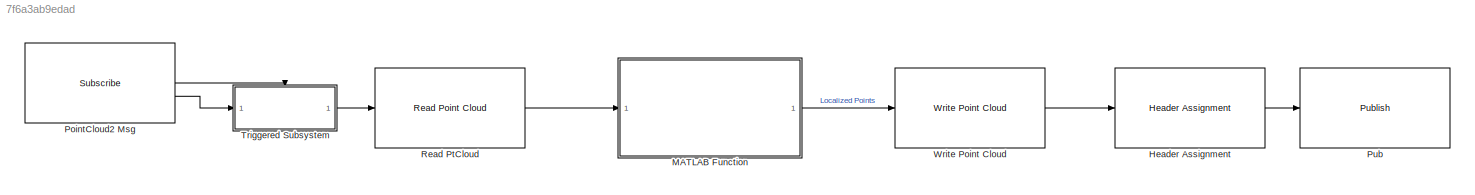
MODEL slx_7f6a3ab9edad
KIND model
CONFIG AbsTol = auto
CONFIG EnableMultiTasking = off
CONFIG FixedStep = auto
CONFIG MaxStep = auto
CONFIG MinStep = auto
CONFIG RelTol = 1e-3
CONFIG SampleTimeConstraint = Unconstrained
CONFIG SolverName = VariableStepAuto
CONFIG StartTime = 0.0
CONFIG StopTime = inf
WORKSPACE source: mxarray member
WORKSPACE SL_ROS_VariableLengthArrays_MaxSizes: object (value not decoded)
BLOCK [Reference] Header Assignment  REF=robotlib/Header Assignment
  LibrarySourceBlock = roslib/ROS/Header Assignment
  SourceBlock = robotlib/Header Assignment
  SourceType = ROS Header
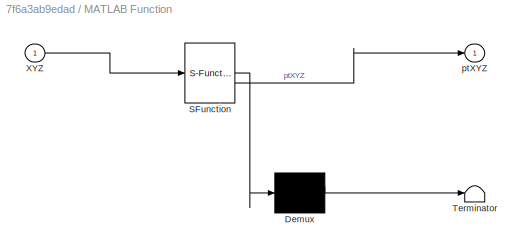
BLOCK [SubSystem] MATLAB Function
  ErrorFcn = Stateflow.Translate.translate
  LibrarySourceBlock = simulink/User-Defined\nFunctions/MATLAB Function
  PermitHierarchicalResolution = ExplicitOnly
  SFBlockType = MATLAB Function
  TreatAsAtomicUnit = on
BLOCK [Demux] MATLAB Function/ Demux 
  Outputs = 1
BLOCK [S-Function] MATLAB Function/ SFunction 
  EnableBusSupport = on
  FunctionName = sf_sfun
  PortCounts = [1 2]
  SFcnIsStateOwnerBlock = off
  SFunctionDeploymentMode = off
  Tag = Stateflow S-Function 2
BLOCK [Terminator] MATLAB Function/ Terminator 
BLOCK [Inport] MATLAB Function/XYZ
BLOCK [Outport] MATLAB Function/ptXYZ
BLOCK [Reference] PointCloud2 Msg  REF=robotlib/Subscribe
  LibrarySourceBlock = roslib/ROS/Subscribe
  SourceBlock = robotlib/Subscribe
  SourceType = ROS Subscribe
BLOCK [Reference] Pub  REF=robotlib/Publish
  LibrarySourceBlock = roslib/ROS/Publish
  SourceBlock = robotlib/Publish
  SourceType = ROS Publish
BLOCK [Reference] Read PtCloud  REF=robotlib/Read Point Cloud
  LibrarySourceBlock = roslib/ROS/Read Point Cloud
  SourceBlock = robotlib/Read Point Cloud
  SourceType = ros.slros.internal.block.ReadPointCloud
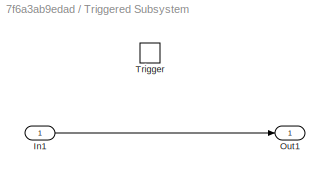
BLOCK [SubSystem] Triggered Subsystem
  TreatAsAtomicUnit = on
BLOCK [Inport] Triggered Subsystem/In1
BLOCK [Outport] Triggered Subsystem/Out1
BLOCK [TriggerPort] Triggered Subsystem/Trigger
  StatesWhenEnabling = held
  VariantControl = (inherit)
BLOCK [Reference] Write Point Cloud  REF=robotlib/Write Point Cloud
  LibrarySourceBlock = roslib/ROS/Write Point Cloud
  SourceBlock = robotlib/Write Point Cloud
  SourceType = ROS Write Point Cloud
LINE Header Assignment:1 -> Pub:1
LINE MATLAB Function:1 -> Write Point Cloud:1
LINE PointCloud2 Msg:1 -> Triggered Subsystem:trigger
LINE PointCloud2 Msg:2 -> Triggered Subsystem:1
LINE Read PtCloud:1 -> MATLAB Function:1
LINE Triggered Subsystem/In1:1 -> Triggered Subsystem/Out1:1
LINE Triggered Subsystem:1 -> Read PtCloud:1
LINE Write Point Cloud:1 -> Header Assignment:1
CHART MATLAB Function states=1 transitions=1
  STATE_LABEL 'eML_blk_kernel()'
  STATE_LABEL 'SCRIPT:\n%want the XYZ from the Read Point Cloud Block\n\nfunction ptXYZ  = ptCloud(XYZ)\n\n%gridStep = 0.1;\n\n\n%while(1)\n%ptCloud = read(obj)\n%for segmenting ground - currently disabled\n% groundPtsIdx = segmentGroundFromLidarData(ptCloud);\n% groundPtCloud = select(ptCloud,~groundPtsIdx);\n\nptCloud = pointCloud(XYZ);\n\n%downsampling - will try to publish as a test\nptCloudOut = pcdownsample(ptCloud,"random...<+200ch>'
CHART  states=0 transitions=0
